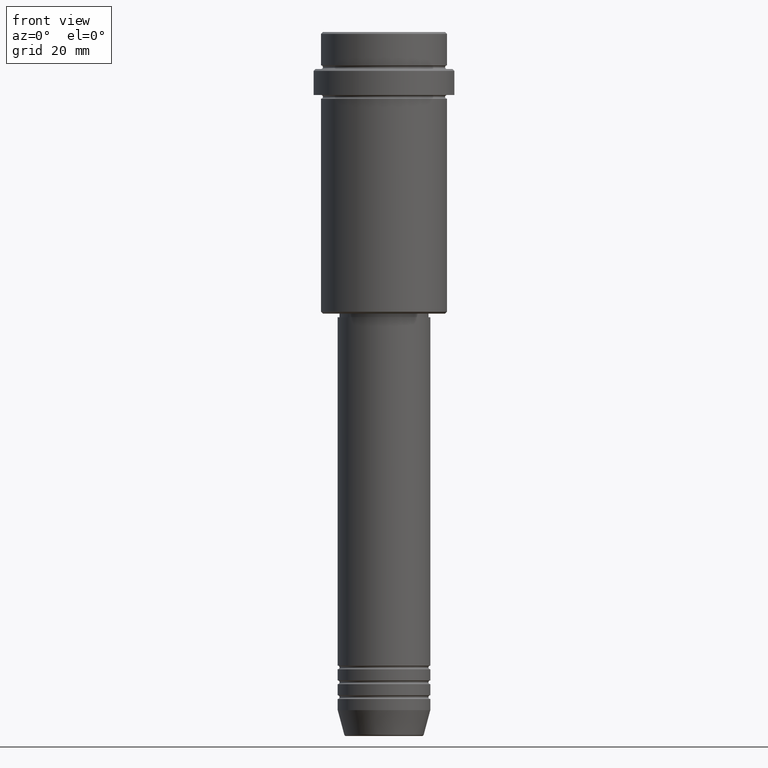
[diagram: clean part render]
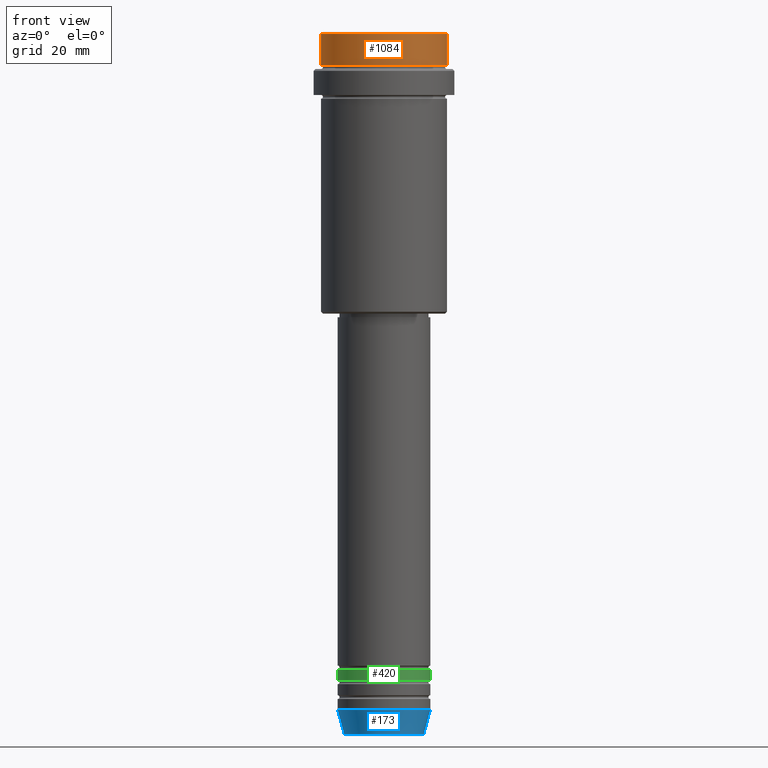
[diagram: same view with three faces highlighted in distinct colors, each labeled with its STEP entity id]
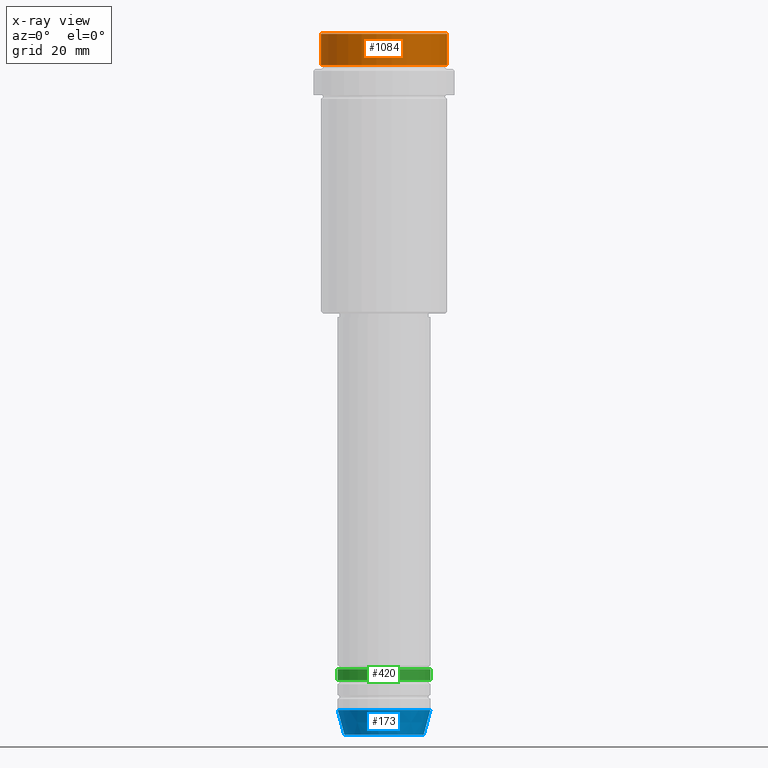
[diagram: x-ray of the same camera — body ghosted, the three highlighted faces saturated]
A machine part, front view with three faces highlighted in distinct colors.
The next image is the same camera in x-ray (body ghosted, the three faces saturated) — at least one of them is partly hidden behind the body in this view.
Their STEP definitions:

[orange] entity #1084 — the highlighted cylindrical surface (partial cylindrical patch) has radius 17 mm, axis along (-0, -0, 1).
#7 = CARTESIAN_POINT ( 'NONE',  ( -16.99999999999997868, 2.081899558550498702E-15, -8.999999999999998224 ) ) ;
#15 = EDGE_LOOP ( 'NONE', ( #1006, #273, #782, #1274 ) ) ;
#25 = AXIS2_PLACEMENT_3D ( 'NONE', #82, #1263, #304 ) ;
#82 = CARTESIAN_POINT ( 'NONE',  ( 0.000000000000000000, 0.000000000000000000, 0.000000000000000000 ) ) ;
#133 = VECTOR ( 'NONE', #929, 1000.000000000000000 ) ;
#151 = CARTESIAN_POINT ( 'NONE',  ( 0.000000000000000000, 0.000000000000000000, -0.4999999999999865663 ) ) ;
#159 = VERTEX_POINT ( 'NONE', #7 ) ;
#164 = DIRECTION ( 'NONE',  ( 1.000000000000000000, 0.000000000000000000, 0.000000000000000000 ) ) ;
#185 = FACE_OUTER_BOUND ( 'NONE', #15, .T. ) ;
#195 = CARTESIAN_POINT ( 'NONE',  ( 16.99999999999998934, 0.000000000000000000, -0.4999999999999865663 ) ) ;
#228 = VERTEX_POINT ( 'NONE', #640 ) ;
#248 = CIRCLE ( 'NONE', #494, 16.99999999999997868 ) ;
#251 = CIRCLE ( 'NONE', #541, 16.99999999999998934 ) ;
#273 = ORIENTED_EDGE ( 'NONE', *, *, #280, .T. ) ;
#280 = EDGE_CURVE ( 'NONE', #159, #228, #248, .T. ) ;
#304 = DIRECTION ( 'NONE',  ( 1.000000000000000000, 0.000000000000000000, 0.000000000000000000 ) ) ;
#306 = EDGE_CURVE ( 'NONE', #228, #920, #471, .T. ) ;
#372 = EDGE_CURVE ( 'NONE', #159, #1267, #1259, .T. ) ;
#399 = CARTESIAN_POINT ( 'NONE',  ( -16.99999999999998934, 2.081899558550499491E-15, 0.000000000000000000 ) ) ;
#471 = LINE ( 'NONE', #481, #1074 ) ;
#481 = CARTESIAN_POINT ( 'NONE',  ( 16.99999999999998934, 0.000000000000000000, 0.000000000000000000 ) ) ;
#482 = DIRECTION ( 'NONE',  ( 1.000000000000000000, 0.000000000000000000, 0.000000000000000000 ) ) ;
#494 = AXIS2_PLACEMENT_3D ( 'NONE', #1219, #993, #164 ) ;
#541 = AXIS2_PLACEMENT_3D ( 'NONE', #151, #1254, #482 ) ;
#640 = CARTESIAN_POINT ( 'NONE',  ( 16.99999999999997868, 0.000000000000000000, -8.999999999999998224 ) ) ;
#782 = ORIENTED_EDGE ( 'NONE', *, *, #306, .T. ) ;
#920 = VERTEX_POINT ( 'NONE', #195 ) ;
#929 = DIRECTION ( 'NONE',  ( -0.000000000000000000, -0.000000000000000000, 1.000000000000000000 ) ) ;
#993 = DIRECTION ( 'NONE',  ( -0.000000000000000000, -0.000000000000000000, 1.000000000000000000 ) ) ;
#1006 = ORIENTED_EDGE ( 'NONE', *, *, #372, .F. ) ;
#1014 = CARTESIAN_POINT ( 'NONE',  ( -16.99999999999998934, 2.081899558550499491E-15, -0.4999999999999865663 ) ) ;
#1074 = VECTOR ( 'NONE', #1345, 1000.000000000000000 ) ;
#1084 = ADVANCED_FACE ( 'NONE', ( #185 ), #1256, .T. ) ;
#1198 = EDGE_CURVE ( 'NONE', #920, #1267, #251, .T. ) ;
#1219 = CARTESIAN_POINT ( 'NONE',  ( 0.000000000000000000, 0.000000000000000000, -8.999999999999998224 ) ) ;
#1254 = DIRECTION ( 'NONE',  ( 0.000000000000000000, 0.000000000000000000, -1.000000000000000000 ) ) ;
#1256 = CYLINDRICAL_SURFACE ( 'NONE', #25, 16.99999999999998934 ) ;
#1259 = LINE ( 'NONE', #399, #133 ) ;
#1263 = DIRECTION ( 'NONE',  ( -0.000000000000000000, -0.000000000000000000, 1.000000000000000000 ) ) ;
#1267 = VERTEX_POINT ( 'NONE', #1014 ) ;
#1274 = ORIENTED_EDGE ( 'NONE', *, *, #1198, .T. ) ;
#1345 = DIRECTION ( 'NONE',  ( -0.000000000000000000, -0.000000000000000000, 1.000000000000000000 ) ) ;

[blue] entity #173 — the highlighted conical surface has half-angle 15 deg.
#29 = DIRECTION ( 'NONE',  ( 0.2588190451025213501, 0.000000000000000000, 0.9659258262890680902 ) ) ;
#54 = DIRECTION ( 'NONE',  ( 1.000000000000000000, 0.000000000000000000, 0.000000000000000000 ) ) ;
#72 = ORIENTED_EDGE ( 'NONE', *, *, #1379, .T. ) ;
#73 = AXIS2_PLACEMENT_3D ( 'NONE', #857, #1191, #54 ) ;
#121 = ORIENTED_EDGE ( 'NONE', *, *, #1071, .T. ) ;
#130 = LINE ( 'NONE', #1192, #821 ) ;
#173 = ADVANCED_FACE ( 'NONE', ( #858 ), #295, .T. ) ;
#217 = VERTEX_POINT ( 'NONE', #1065 ) ;
#240 = DIRECTION ( 'NONE',  ( 1.000000000000000000, 0.000000000000000000, 0.000000000000000000 ) ) ;
#246 = DIRECTION ( 'NONE',  ( -0.2588190451025213501, 3.169619151431772337E-17, 0.9659258262890680902 ) ) ;
#295 = CONICAL_SURFACE ( 'NONE', #1073, 12.50000000000000000, 0.2617993877991500740 ) ;
#316 = DIRECTION ( 'NONE',  ( -0.000000000000000000, -0.000000000000000000, 1.000000000000000000 ) ) ;
#335 = EDGE_CURVE ( 'NONE', #217, #790, #468, .T. ) ;
#339 = ORIENTED_EDGE ( 'NONE', *, *, #335, .F. ) ;
#468 = LINE ( 'NONE', #1109, #579 ) ;
#579 = VECTOR ( 'NONE', #246, 1000.000000000000000 ) ;
#581 = EDGE_CURVE ( 'NONE', #790, #595, #873, .T. ) ;
#595 = VERTEX_POINT ( 'NONE', #1035 ) ;
#660 = CARTESIAN_POINT ( 'NONE',  ( -12.50000000000000000, 1.530808498934191521E-15, -183.0000000000000000 ) ) ;
#785 = EDGE_LOOP ( 'NONE', ( #339, #121, #72, #854 ) ) ;
#790 = VERTEX_POINT ( 'NONE', #660 ) ;
#821 = VECTOR ( 'NONE', #29, 1000.000000000000000 ) ;
#835 = CARTESIAN_POINT ( 'NONE',  ( 0.000000000000000000, 0.000000000000000000, -183.0000000000000000 ) ) ;
#854 = ORIENTED_EDGE ( 'NONE', *, *, #581, .F. ) ;
#857 = CARTESIAN_POINT ( 'NONE',  ( 0.000000000000000000, 0.000000000000000000, -189.6294095225512706 ) ) ;
#858 = FACE_OUTER_BOUND ( 'NONE', #785, .T. ) ;
#873 = CIRCLE ( 'NONE', #1048, 12.50000000000000000 ) ;
#887 = VERTEX_POINT ( 'NONE', #1140 ) ;
#1035 = CARTESIAN_POINT ( 'NONE',  ( 12.50000000000000000, 0.000000000000000000, -183.0000000000000000 ) ) ;
#1048 = AXIS2_PLACEMENT_3D ( 'NONE', #1284, #316, #1304 ) ;
#1065 = CARTESIAN_POINT ( 'NONE',  ( -10.72365507213718416, 1.422038742429750121E-15, -189.6294095225512706 ) ) ;
#1071 = EDGE_CURVE ( 'NONE', #217, #887, #1124, .T. ) ;
#1073 = AXIS2_PLACEMENT_3D ( 'NONE', #835, #1211, #240 ) ;
#1109 = CARTESIAN_POINT ( 'NONE',  ( -12.50000000000000000, 1.530808498934191521E-15, -183.0000000000000000 ) ) ;
#1124 = CIRCLE ( 'NONE', #73, 10.72365507213718416 ) ;
#1140 = CARTESIAN_POINT ( 'NONE',  ( 10.72365507213718416, 0.000000000000000000, -189.6294095225512706 ) ) ;
#1191 = DIRECTION ( 'NONE',  ( -0.000000000000000000, -0.000000000000000000, 1.000000000000000000 ) ) ;
#1192 = CARTESIAN_POINT ( 'NONE',  ( 12.50000000000000000, 0.000000000000000000, -183.0000000000000000 ) ) ;
#1211 = DIRECTION ( 'NONE',  ( -0.000000000000000000, -0.000000000000000000, 1.000000000000000000 ) ) ;
#1284 = CARTESIAN_POINT ( 'NONE',  ( 0.000000000000000000, 0.000000000000000000, -183.0000000000000000 ) ) ;
#1304 = DIRECTION ( 'NONE',  ( 1.000000000000000000, 0.000000000000000000, 0.000000000000000000 ) ) ;
#1379 = EDGE_CURVE ( 'NONE', #887, #595, #130, .T. ) ;

[green] entity #420 — the highlighted cylindrical surface (partial cylindrical patch) has radius 12.5 mm, axis along (-0, -0, 1).
#3 = LINE ( 'NONE', #1055, #229 ) ;
#14 = ORIENTED_EDGE ( 'NONE', *, *, #38, .T. ) ;
#38 = EDGE_CURVE ( 'NONE', #840, #59, #578, .T. ) ;
#46 = VECTOR ( 'NONE', #1367, 1000.000000000000000 ) ;
#59 = VERTEX_POINT ( 'NONE', #1266 ) ;
#193 = DIRECTION ( 'NONE',  ( 1.000000000000000000, 0.000000000000000000, 0.000000000000000000 ) ) ;
#215 = ORIENTED_EDGE ( 'NONE', *, *, #530, .F. ) ;
#229 = VECTOR ( 'NONE', #1068, 1000.000000000000000 ) ;
#278 = CARTESIAN_POINT ( 'NONE',  ( 12.50000000000000000, 0.000000000000000000, 0.000000000000000000 ) ) ;
#357 = CARTESIAN_POINT ( 'NONE',  ( 12.50000000000000000, 0.000000000000000000, -171.9999999999999147 ) ) ;
#402 = CARTESIAN_POINT ( 'NONE',  ( 0.000000000000000000, 0.000000000000000000, -174.9999999999998863 ) ) ;
#420 = ADVANCED_FACE ( 'NONE', ( #812 ), #1038, .T. ) ;
#488 = VERTEX_POINT ( 'NONE', #499 ) ;
#499 = CARTESIAN_POINT ( 'NONE',  ( -12.50000000000000000, 1.530808498934191521E-15, -171.9999999999999147 ) ) ;
#507 = DIRECTION ( 'NONE',  ( 1.000000000000000000, 0.000000000000000000, 0.000000000000000000 ) ) ;
#530 = EDGE_CURVE ( 'NONE', #840, #488, #3, .T. ) ;
#531 = ORIENTED_EDGE ( 'NONE', *, *, #1302, .F. ) ;
#550 = DIRECTION ( 'NONE',  ( -0.000000000000000000, -0.000000000000000000, 1.000000000000000000 ) ) ;
#578 = CIRCLE ( 'NONE', #1386, 12.50000000000000000 ) ;
#614 = EDGE_CURVE ( 'NONE', #59, #786, #651, .T. ) ;
#626 = EDGE_LOOP ( 'NONE', ( #215, #14, #726, #531 ) ) ;
#651 = LINE ( 'NONE', #278, #46 ) ;
#726 = ORIENTED_EDGE ( 'NONE', *, *, #614, .T. ) ;
#739 = AXIS2_PLACEMENT_3D ( 'NONE', #1151, #550, #756 ) ;
#756 = DIRECTION ( 'NONE',  ( 1.000000000000000000, 0.000000000000000000, 0.000000000000000000 ) ) ;
#786 = VERTEX_POINT ( 'NONE', #357 ) ;
#812 = FACE_OUTER_BOUND ( 'NONE', #626, .T. ) ;
#840 = VERTEX_POINT ( 'NONE', #1213 ) ;
#1021 = DIRECTION ( 'NONE',  ( -0.000000000000000000, -0.000000000000000000, 1.000000000000000000 ) ) ;
#1030 = CIRCLE ( 'NONE', #739, 12.50000000000000000 ) ;
#1038 = CYLINDRICAL_SURFACE ( 'NONE', #1415, 12.50000000000000000 ) ;
#1055 = CARTESIAN_POINT ( 'NONE',  ( -12.50000000000000000, 1.530808498934191521E-15, 0.000000000000000000 ) ) ;
#1068 = DIRECTION ( 'NONE',  ( -0.000000000000000000, -0.000000000000000000, 1.000000000000000000 ) ) ;
#1151 = CARTESIAN_POINT ( 'NONE',  ( 0.000000000000000000, 0.000000000000000000, -171.9999999999999147 ) ) ;
#1213 = CARTESIAN_POINT ( 'NONE',  ( -12.50000000000000000, 1.530808498934191521E-15, -174.9999999999998863 ) ) ;
#1266 = CARTESIAN_POINT ( 'NONE',  ( 12.50000000000000000, 0.000000000000000000, -174.9999999999998863 ) ) ;
#1302 = EDGE_CURVE ( 'NONE', #488, #786, #1030, .T. ) ;
#1367 = DIRECTION ( 'NONE',  ( -0.000000000000000000, -0.000000000000000000, 1.000000000000000000 ) ) ;
#1384 = DIRECTION ( 'NONE',  ( -0.000000000000000000, -0.000000000000000000, 1.000000000000000000 ) ) ;
#1386 = AXIS2_PLACEMENT_3D ( 'NONE', #402, #1021, #193 ) ;
#1394 = CARTESIAN_POINT ( 'NONE',  ( 0.000000000000000000, 0.000000000000000000, 0.000000000000000000 ) ) ;
#1415 = AXIS2_PLACEMENT_3D ( 'NONE', #1394, #1384, #507 ) ;